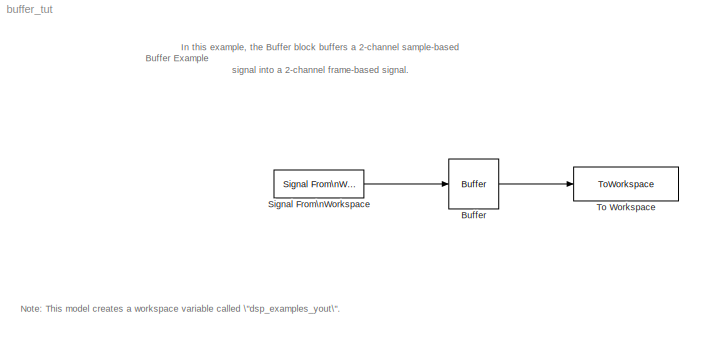
MODEL buffer_tut
KIND model
CONFIG AbsTol = auto
CONFIG FixedStep = auto
CONFIG MaxStep = auto
CONFIG MinStep = auto
CONFIG PostLoadFcn = set_param(gcs,'SimulationCommand','Update')
CONFIG RelTol = 1e-3
CONFIG Solver = FixedStepDiscrete
CONFIG SolverMode = Auto
CONFIG StartTime = 0.0
CONFIG StopTime = 10.0
BLOCK [Reference] Buffer  REF=dspbuff3/Buffer
  N = 4
  Ports = [1, 1]
  SourceBlock = dspbuff3/Buffer
  SourceType = Buffer
  V = 0
  ic = 0
BLOCK [Reference] Signal From\nWorkspace  REF=dspsrcs3/Signal From\nWorkspace
  OutputAfterFinalValue = Setting To Zero
  Ports = [0, 1]
  SourceBlock = dspsrcs3/Signal From\nWorkspace
  SourceType = Signal From Workspace
  Ts = 1
  X = [1:10;-1:-1:-10]'
  nsamps = 1
BLOCK [ToWorkspace] To Workspace
  Decimation = 1
  MaxDataPoints = inf
  SampleTime = -1
  SaveFormat = Array
  VariableName = dsp_examples_yout
LINE Buffer:1 -> To Workspace:1
LINE Signal From\nWorkspace:1 -> Buffer:1
